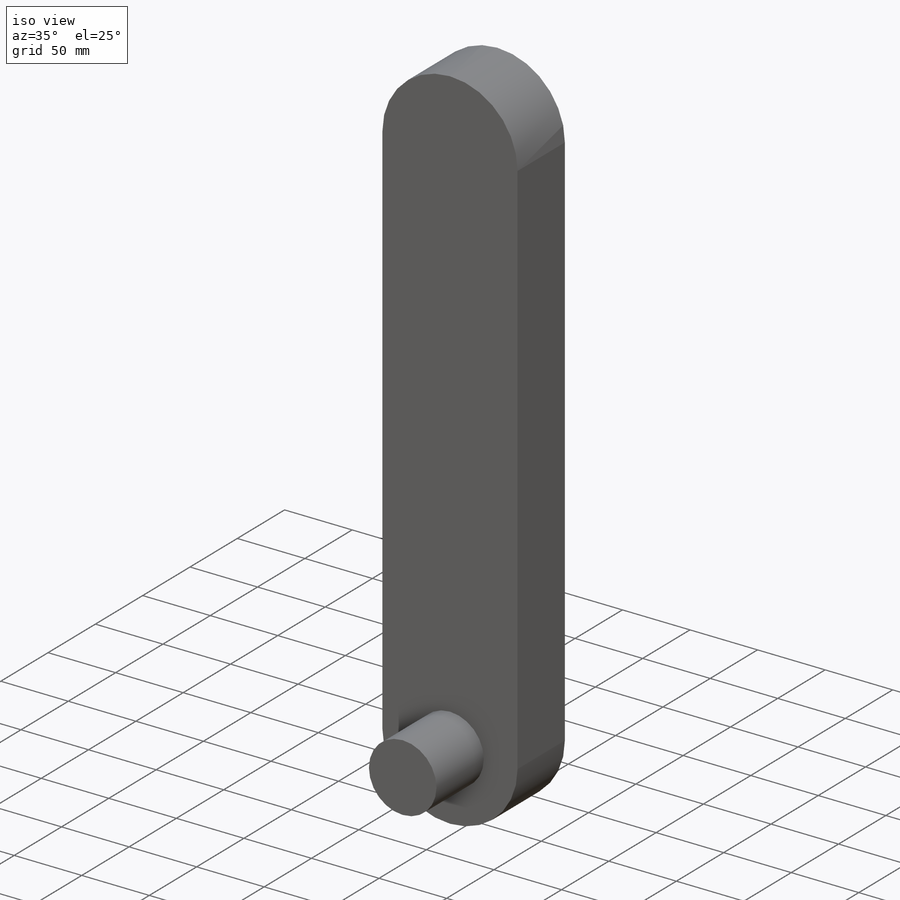
[diagram: iso view]
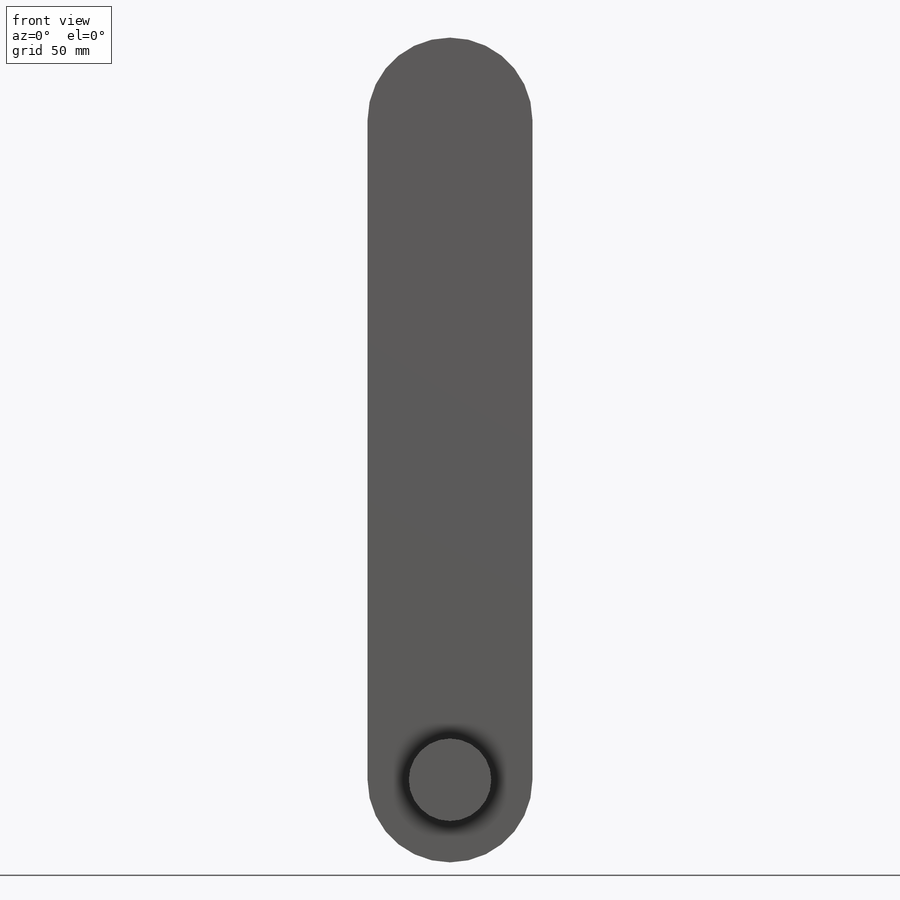
[diagram: front view]
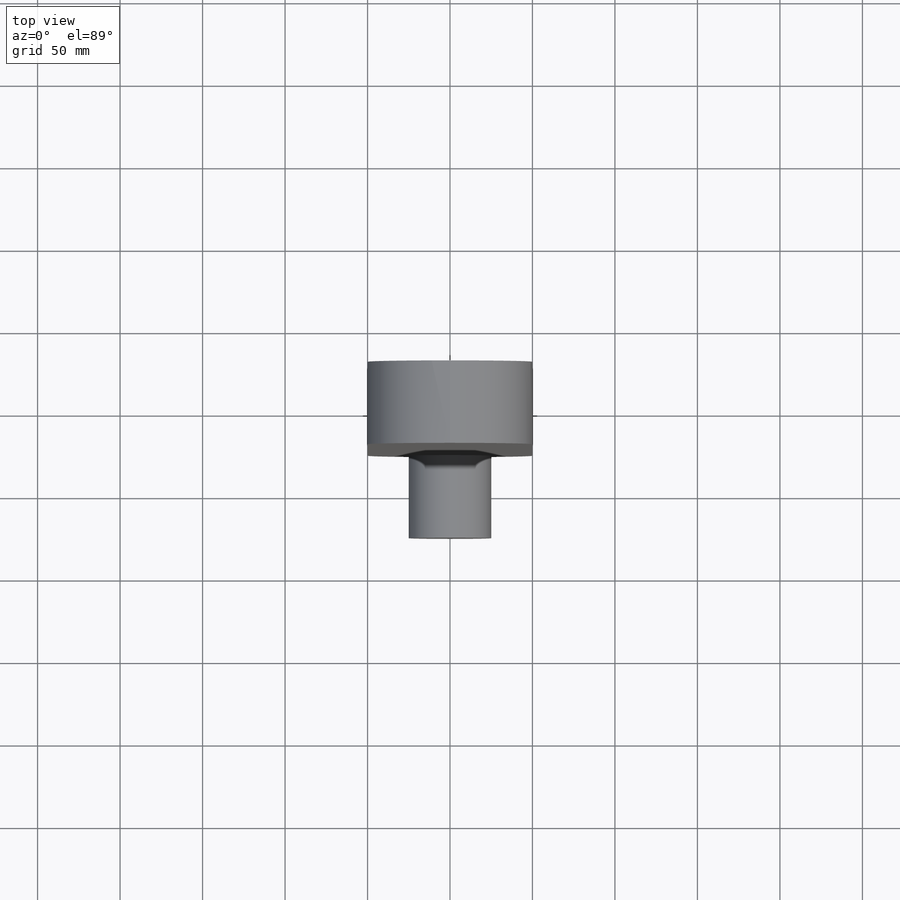
[diagram: top view]
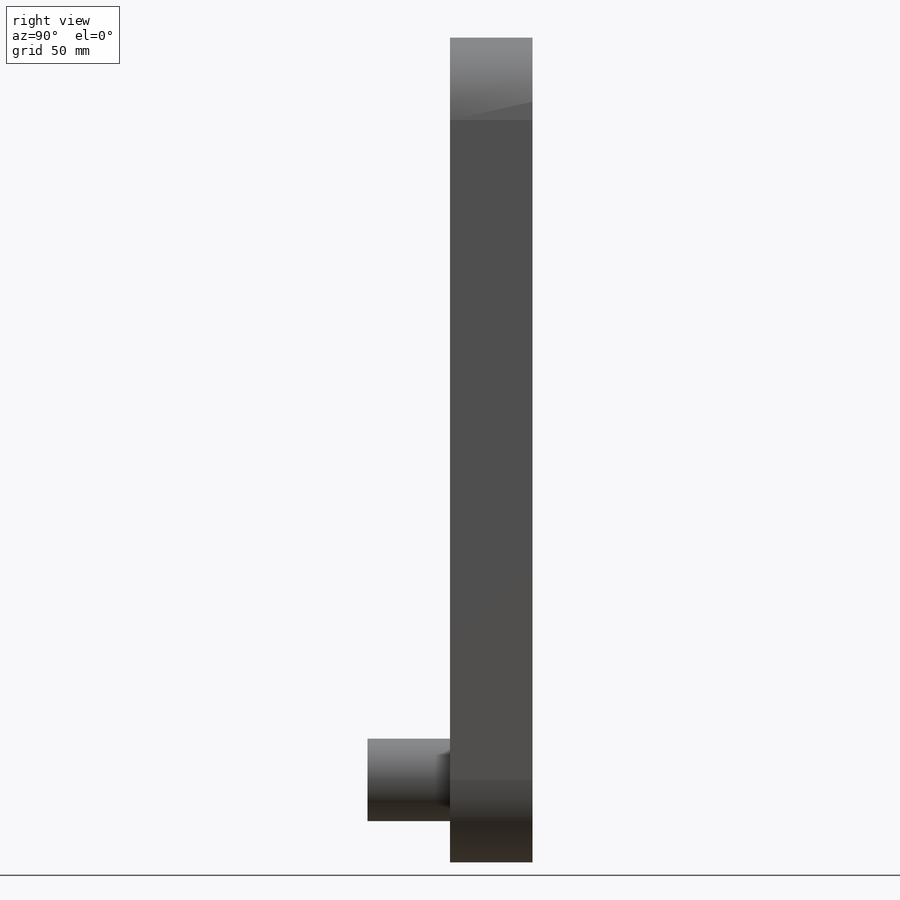
[diagram: right view]
SOLIDWORKS PART (.sldprt)
format: sldprt  version: not decoded by parser v0  size: 190,976 bytes
history: native  units: mm
features: plane x3, extrude x2, fillet x2, material x1, sketch x1 + 1 further entry (+9 scaffold rows collapsed)
feature tree (19):
  scaffold x9  (default folders/planes/origin — collapsed)
  material  "1060 合金"
  "注解"  RD1=100mm RD2=400mm
  plane  "前视基准面"
  plane  "上视基准面"
  plane  "右视基准面"
  sketch  "草图1"  dims[D1=100.0mm D2=500.0mm]
  extrude  "凸台-拉伸1"  Depth=50mm
  fillet  "圆角1"  Radius=50mm
  fillet  "草图2"  Radius=50mm
  extrude  "凸台-拉伸2"  Depth=50mm
decode coverage: 5 of 5 modeling features carry decoded parameters; 1 rows unclassified (native names shown)
note: suppression state not decoded; provenance and decode notes live in map.json
